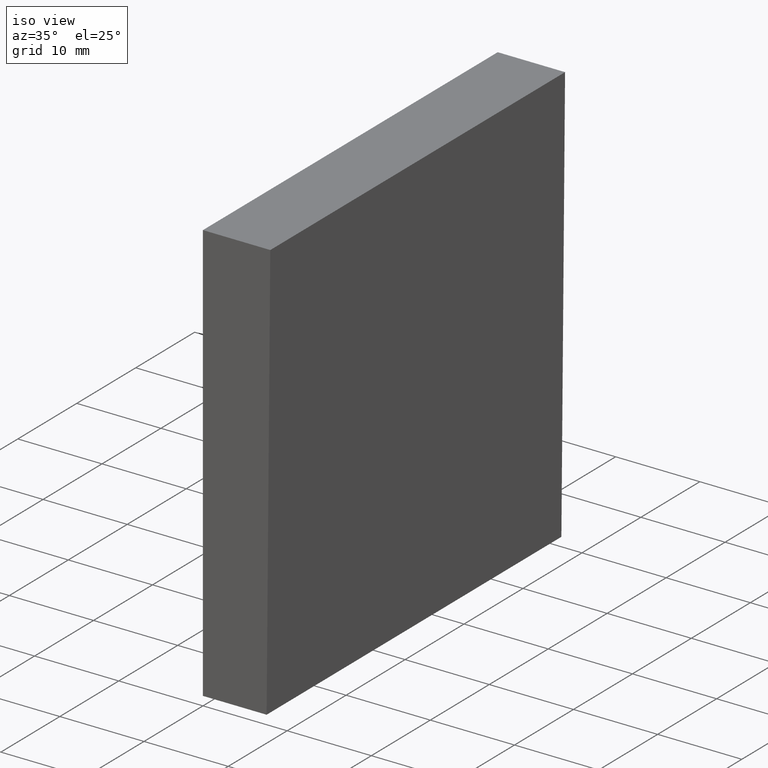
[diagram: clean part render]
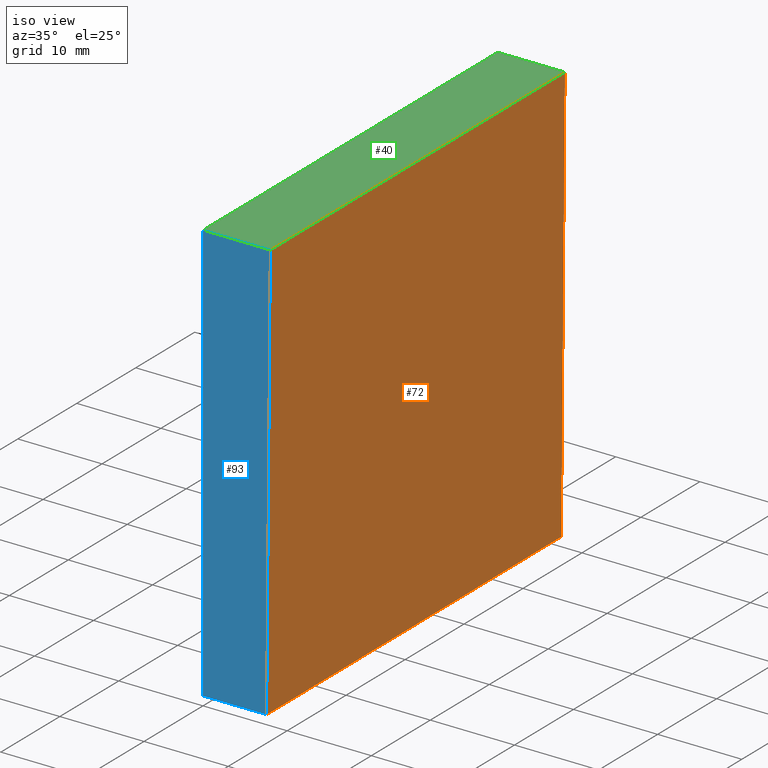
[diagram: same view with three faces highlighted in distinct colors, each labeled with its STEP entity id]
A machine part, iso view with three faces highlighted in distinct colors.
Their STEP definitions:

[orange] entity #72 — the highlighted planar face has unit normal (-1, 0, 0.0087).
#5 = ORIENTED_EDGE ( 'NONE', *, *, #96, .F. ) ;
#6 = DIRECTION ( 'NONE',  ( -0.0000000000000000000, -1.000000000000000000, -0.0000000000000000000 ) ) ;
#10 = DIRECTION ( 'NONE',  ( -0.0000000000000000000, -1.000000000000000000, -0.0000000000000000000 ) ) ;
#13 = VERTEX_POINT ( 'NONE', #35 ) ;
#15 = LINE ( 'NONE', #193, #80 ) ;
#18 = DIRECTION ( 'NONE',  ( 0.008726535498366981900, 0.0000000000000000000, 0.9999619230641713100 ) ) ;
#22 = VERTEX_POINT ( 'NONE', #183 ) ;
#27 = VERTEX_POINT ( 'NONE', #85 ) ;
#28 = ORIENTED_EDGE ( 'NONE', *, *, #73, .F. ) ;
#29 = CARTESIAN_POINT ( 'NONE',  ( 7.563656610462413900, 50.00000000000000000, -25.00000000000000000 ) ) ;
#35 = CARTESIAN_POINT ( 'NONE',  ( 8.000000000000005300, 50.00000000000000000, 25.00000000000000000 ) ) ;
#43 = EDGE_LOOP ( 'NONE', ( #125, #5, #28, #162 ) ) ;
#45 = CARTESIAN_POINT ( 'NONE',  ( 7.563656610462413900, 0.0000000000000000000, -25.00000000000000000 ) ) ;
#47 = CARTESIAN_POINT ( 'NONE',  ( 8.000000000000005300, 50.00000000000000000, 25.00000000000000000 ) ) ;
#72 = ADVANCED_FACE ( 'NONE', ( #114 ), #175, .F. ) ;
#73 = EDGE_CURVE ( 'NONE', #13, #22, #117, .T. ) ;
#80 = VECTOR ( 'NONE', #10, 1000.000000000000000 ) ;
#85 = CARTESIAN_POINT ( 'NONE',  ( 8.000000000000005300, 0.0000000000000000000, 25.00000000000000000 ) ) ;
#90 = DIRECTION ( 'NONE',  ( -0.008726535498366983600, 0.0000000000000000000, -0.9999619230641713100 ) ) ;
#96 = EDGE_CURVE ( 'NONE', #22, #103, #146, .T. ) ;
#103 = VERTEX_POINT ( 'NONE', #45 ) ;
#108 = CARTESIAN_POINT ( 'NONE',  ( 8.000000000000005300, 50.00000000000000000, 25.00000000000000000 ) ) ;
#114 = FACE_OUTER_BOUND ( 'NONE', #43, .T. ) ;
#117 = LINE ( 'NONE', #47, #155 ) ;
#123 = DIRECTION ( 'NONE',  ( -0.9999619230641714200, 0.0000000000000000000, 0.008726535498366983600 ) ) ;
#125 = ORIENTED_EDGE ( 'NONE', *, *, #176, .T. ) ;
#134 = LINE ( 'NONE', #200, #182 ) ;
#146 = LINE ( 'NONE', #29, #170 ) ;
#155 = VECTOR ( 'NONE', #179, 1000.000000000000200 ) ;
#162 = ORIENTED_EDGE ( 'NONE', *, *, #190, .T. ) ;
#170 = VECTOR ( 'NONE', #6, 1000.000000000000000 ) ;
#175 = PLANE ( 'NONE',  #178 ) ;
#176 = EDGE_CURVE ( 'NONE', #27, #103, #134, .T. ) ;
#178 = AXIS2_PLACEMENT_3D ( 'NONE', #108, #123, #18 ) ;
#179 = DIRECTION ( 'NONE',  ( -0.008726535498366983600, 0.0000000000000000000, -0.9999619230641713100 ) ) ;
#182 = VECTOR ( 'NONE', #90, 1000.000000000000200 ) ;
#183 = CARTESIAN_POINT ( 'NONE',  ( 7.563656610462413900, 50.00000000000000000, -25.00000000000000000 ) ) ;
#190 = EDGE_CURVE ( 'NONE', #13, #27, #15, .T. ) ;
#193 = CARTESIAN_POINT ( 'NONE',  ( 8.000000000000005300, 50.00000000000000000, 25.00000000000000000 ) ) ;
#200 = CARTESIAN_POINT ( 'NONE',  ( 8.000000000000005300, 0.0000000000000000000, 25.00000000000000000 ) ) ;

[blue] entity #93 — the highlighted planar face has unit normal (0, -1, 0).
#4 = VERTEX_POINT ( 'NONE', #100 ) ;
#16 = EDGE_CURVE ( 'NONE', #4, #27, #141, .T. ) ;
#26 = ORIENTED_EDGE ( 'NONE', *, *, #140, .F. ) ;
#27 = VERTEX_POINT ( 'NONE', #85 ) ;
#32 = CARTESIAN_POINT ( 'NONE',  ( 5.204170427930421300E-015, 0.0000000000000000000, -25.00000000000000000 ) ) ;
#37 = CARTESIAN_POINT ( 'NONE',  ( 5.204170427930421300E-015, 0.0000000000000000000, -25.00000000000000000 ) ) ;
#45 = CARTESIAN_POINT ( 'NONE',  ( 7.563656610462413900, 0.0000000000000000000, -25.00000000000000000 ) ) ;
#62 = EDGE_LOOP ( 'NONE', ( #26, #68, #173, #112 ) ) ;
#63 = DIRECTION ( 'NONE',  ( 0.0000000000000000000, -1.000000000000000000, 0.0000000000000000000 ) ) ;
#64 = DIRECTION ( 'NONE',  ( -1.000000000000000000, -0.0000000000000000000, -0.0000000000000000000 ) ) ;
#68 = ORIENTED_EDGE ( 'NONE', *, *, #176, .F. ) ;
#70 = EDGE_CURVE ( 'NONE', #154, #4, #86, .T. ) ;
#83 = CARTESIAN_POINT ( 'NONE',  ( 0.0000000000000000000, 0.0000000000000000000, 0.0000000000000000000 ) ) ;
#85 = CARTESIAN_POINT ( 'NONE',  ( 8.000000000000005300, 0.0000000000000000000, 25.00000000000000000 ) ) ;
#86 = LINE ( 'NONE', #32, #152 ) ;
#90 = DIRECTION ( 'NONE',  ( -0.008726535498366983600, 0.0000000000000000000, -0.9999619230641713100 ) ) ;
#93 = ADVANCED_FACE ( 'NONE', ( #156 ), #98, .T. ) ;
#98 = PLANE ( 'NONE',  #188 ) ;
#100 = CARTESIAN_POINT ( 'NONE',  ( 5.204170427930421300E-015, 0.0000000000000000000, 25.00000000000000000 ) ) ;
#103 = VERTEX_POINT ( 'NONE', #45 ) ;
#111 = CARTESIAN_POINT ( 'NONE',  ( 5.204170427930421300E-015, 0.0000000000000000000, -25.00000000000000000 ) ) ;
#112 = ORIENTED_EDGE ( 'NONE', *, *, #70, .F. ) ;
#120 = VECTOR ( 'NONE', #160, 1000.000000000000000 ) ;
#121 = VECTOR ( 'NONE', #64, 1000.000000000000000 ) ;
#122 = DIRECTION ( 'NONE',  ( 0.0000000000000000000, -0.0000000000000000000, -1.000000000000000000 ) ) ;
#134 = LINE ( 'NONE', #200, #182 ) ;
#140 = EDGE_CURVE ( 'NONE', #103, #154, #192, .T. ) ;
#141 = LINE ( 'NONE', #195, #120 ) ;
#142 = DIRECTION ( 'NONE',  ( 0.0000000000000000000, 0.0000000000000000000, 1.000000000000000000 ) ) ;
#152 = VECTOR ( 'NONE', #142, 1000.000000000000000 ) ;
#154 = VERTEX_POINT ( 'NONE', #37 ) ;
#156 = FACE_OUTER_BOUND ( 'NONE', #62, .T. ) ;
#160 = DIRECTION ( 'NONE',  ( 1.000000000000000000, 0.0000000000000000000, 0.0000000000000000000 ) ) ;
#173 = ORIENTED_EDGE ( 'NONE', *, *, #16, .F. ) ;
#176 = EDGE_CURVE ( 'NONE', #27, #103, #134, .T. ) ;
#182 = VECTOR ( 'NONE', #90, 1000.000000000000200 ) ;
#188 = AXIS2_PLACEMENT_3D ( 'NONE', #83, #63, #122 ) ;
#192 = LINE ( 'NONE', #111, #121 ) ;
#195 = CARTESIAN_POINT ( 'NONE',  ( 5.204170427930421300E-015, 0.0000000000000000000, 25.00000000000000000 ) ) ;
#200 = CARTESIAN_POINT ( 'NONE',  ( 8.000000000000005300, 0.0000000000000000000, 25.00000000000000000 ) ) ;

[green] entity #40 — the highlighted planar face has unit normal (0, 0, -1).
#2 = FACE_OUTER_BOUND ( 'NONE', #107, .T. ) ;
#4 = VERTEX_POINT ( 'NONE', #100 ) ;
#7 = VERTEX_POINT ( 'NONE', #145 ) ;
#8 = DIRECTION ( 'NONE',  ( 1.000000000000000000, 0.0000000000000000000, 0.0000000000000000000 ) ) ;
#10 = DIRECTION ( 'NONE',  ( -0.0000000000000000000, -1.000000000000000000, -0.0000000000000000000 ) ) ;
#13 = VERTEX_POINT ( 'NONE', #35 ) ;
#15 = LINE ( 'NONE', #193, #80 ) ;
#16 = EDGE_CURVE ( 'NONE', #4, #27, #141, .T. ) ;
#17 = ORIENTED_EDGE ( 'NONE', *, *, #190, .F. ) ;
#20 = DIRECTION ( 'NONE',  ( -1.000000000000000000, 0.0000000000000000000, -0.0000000000000000000 ) ) ;
#24 = ORIENTED_EDGE ( 'NONE', *, *, #16, .T. ) ;
#27 = VERTEX_POINT ( 'NONE', #85 ) ;
#33 = DIRECTION ( 'NONE',  ( 0.0000000000000000000, 0.0000000000000000000, -1.000000000000000000 ) ) ;
#35 = CARTESIAN_POINT ( 'NONE',  ( 8.000000000000005300, 50.00000000000000000, 25.00000000000000000 ) ) ;
#40 = ADVANCED_FACE ( 'NONE', ( #2 ), #126, .F. ) ;
#56 = EDGE_CURVE ( 'NONE', #7, #13, #105, .T. ) ;
#66 = ORIENTED_EDGE ( 'NONE', *, *, #143, .T. ) ;
#76 = VECTOR ( 'NONE', #8, 1000.000000000000000 ) ;
#77 = AXIS2_PLACEMENT_3D ( 'NONE', #88, #33, #20 ) ;
#80 = VECTOR ( 'NONE', #10, 1000.000000000000000 ) ;
#84 = CARTESIAN_POINT ( 'NONE',  ( 5.204170427930421300E-015, 50.00000000000000000, 25.00000000000000000 ) ) ;
#85 = CARTESIAN_POINT ( 'NONE',  ( 8.000000000000005300, 0.0000000000000000000, 25.00000000000000000 ) ) ;
#88 = CARTESIAN_POINT ( 'NONE',  ( 5.204170427930421300E-015, 50.00000000000000000, 25.00000000000000000 ) ) ;
#97 = CARTESIAN_POINT ( 'NONE',  ( 5.204170427930421300E-015, 50.00000000000000000, 25.00000000000000000 ) ) ;
#99 = ORIENTED_EDGE ( 'NONE', *, *, #56, .F. ) ;
#100 = CARTESIAN_POINT ( 'NONE',  ( 5.204170427930421300E-015, 0.0000000000000000000, 25.00000000000000000 ) ) ;
#105 = LINE ( 'NONE', #97, #76 ) ;
#107 = EDGE_LOOP ( 'NONE', ( #24, #17, #99, #66 ) ) ;
#120 = VECTOR ( 'NONE', #160, 1000.000000000000000 ) ;
#126 = PLANE ( 'NONE',  #77 ) ;
#139 = VECTOR ( 'NONE', #165, 1000.000000000000000 ) ;
#141 = LINE ( 'NONE', #195, #120 ) ;
#143 = EDGE_CURVE ( 'NONE', #7, #4, #202, .T. ) ;
#145 = CARTESIAN_POINT ( 'NONE',  ( 5.204170427930421300E-015, 50.00000000000000000, 25.00000000000000000 ) ) ;
#160 = DIRECTION ( 'NONE',  ( 1.000000000000000000, 0.0000000000000000000, 0.0000000000000000000 ) ) ;
#165 = DIRECTION ( 'NONE',  ( -0.0000000000000000000, -1.000000000000000000, -0.0000000000000000000 ) ) ;
#190 = EDGE_CURVE ( 'NONE', #13, #27, #15, .T. ) ;
#193 = CARTESIAN_POINT ( 'NONE',  ( 8.000000000000005300, 50.00000000000000000, 25.00000000000000000 ) ) ;
#195 = CARTESIAN_POINT ( 'NONE',  ( 5.204170427930421300E-015, 0.0000000000000000000, 25.00000000000000000 ) ) ;
#202 = LINE ( 'NONE', #84, #139 ) ;